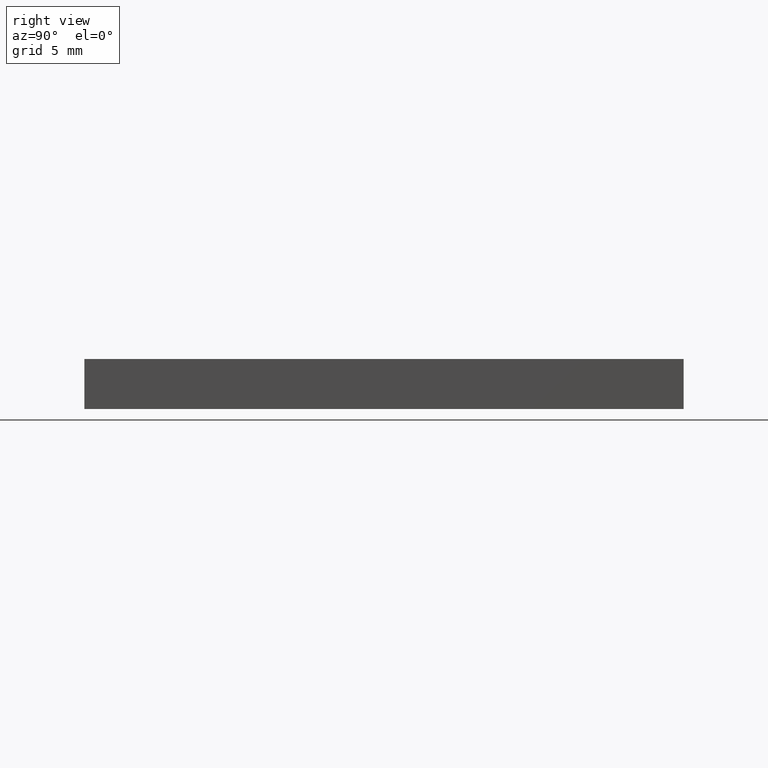
[diagram: clean part render]
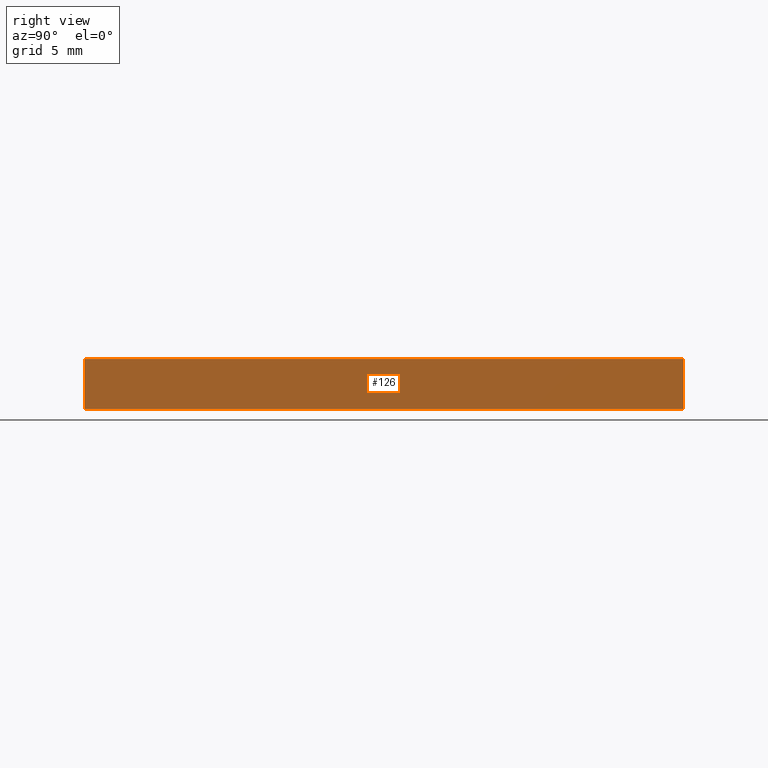
[diagram: same view with one face highlighted and labeled with its STEP entity id]
A machine part, right view. The second image highlights one B-rep face of the part: STEP entity #126.
In plain terms, the highlighted planar face has unit normal (-1, -0, 0).
Its self-contained STEP definition (entity closure, byte-faithful):
#18 = ORIENTED_EDGE ( 'NONE', *, *, #250, .T. ) ;
#21 = DIRECTION ( 'NONE',  ( -2.891205793294678800E-016, 1.000000000000000000, -0.0000000000000000000 ) ) ;
#27 = VECTOR ( 'NONE', #261, 1000.000000000000000 ) ;
#46 = CARTESIAN_POINT ( 'NONE',  ( 18.64837398373983700, 7.520325203252024700, 3.000000000000000000 ) ) ;
#47 = VECTOR ( 'NONE', #107, 1000.000000000000000 ) ;
#58 = CARTESIAN_POINT ( 'NONE',  ( 18.64837398373983700, 7.520325203252024700, 3.000000000000000000 ) ) ;
#61 = PLANE ( 'NONE',  #231 ) ;
#71 = VERTEX_POINT ( 'NONE', #58 ) ;
#75 = EDGE_LOOP ( 'NONE', ( #18, #150, #212, #134 ) ) ;
#85 = EDGE_CURVE ( 'NONE', #71, #154, #104, .T. ) ;
#87 = FACE_OUTER_BOUND ( 'NONE', #75, .T. ) ;
#95 = LINE ( 'NONE', #264, #281 ) ;
#104 = LINE ( 'NONE', #258, #47 ) ;
#107 = DIRECTION ( 'NONE',  ( -0.0000000000000000000, -0.0000000000000000000, -1.000000000000000000 ) ) ;
#126 = ADVANCED_FACE ( 'NONE', ( #87 ), #61, .F. ) ;
#134 = ORIENTED_EDGE ( 'NONE', *, *, #300, .T. ) ;
#140 = LINE ( 'NONE', #46, #27 ) ;
#141 = VERTEX_POINT ( 'NONE', #312 ) ;
#148 = DIRECTION ( 'NONE',  ( 2.891205793294678800E-016, -1.000000000000000000, 0.0000000000000000000 ) ) ;
#150 = ORIENTED_EDGE ( 'NONE', *, *, #85, .F. ) ;
#154 = VERTEX_POINT ( 'NONE', #314 ) ;
#164 = CARTESIAN_POINT ( 'NONE',  ( 18.64837398373984800, -28.47967479674797200, 3.000000000000000000 ) ) ;
#170 = CARTESIAN_POINT ( 'NONE',  ( 18.64837398373983700, 7.520325203252024700, 3.000000000000000000 ) ) ;
#184 = EDGE_CURVE ( 'NONE', #141, #71, #140, .T. ) ;
#212 = ORIENTED_EDGE ( 'NONE', *, *, #184, .F. ) ;
#216 = LINE ( 'NONE', #164, #253 ) ;
#224 = VERTEX_POINT ( 'NONE', #287 ) ;
#231 = AXIS2_PLACEMENT_3D ( 'NONE', #170, #294, #148 ) ;
#250 = EDGE_CURVE ( 'NONE', #224, #154, #95, .T. ) ;
#253 = VECTOR ( 'NONE', #259, 1000.000000000000000 ) ;
#258 = CARTESIAN_POINT ( 'NONE',  ( 18.64837398373983700, 7.520325203252024700, 3.000000000000000000 ) ) ;
#259 = DIRECTION ( 'NONE',  ( -0.0000000000000000000, -0.0000000000000000000, -1.000000000000000000 ) ) ;
#261 = DIRECTION ( 'NONE',  ( -2.891205793294678800E-016, 1.000000000000000000, -0.0000000000000000000 ) ) ;
#264 = CARTESIAN_POINT ( 'NONE',  ( 18.64837398373983700, 7.520325203252024700, 0.0000000000000000000 ) ) ;
#281 = VECTOR ( 'NONE', #21, 1000.000000000000000 ) ;
#287 = CARTESIAN_POINT ( 'NONE',  ( 18.64837398373984800, -28.47967479674797200, 0.0000000000000000000 ) ) ;
#294 = DIRECTION ( 'NONE',  ( -1.000000000000000000, -2.891205793294678800E-016, 0.0000000000000000000 ) ) ;
#300 = EDGE_CURVE ( 'NONE', #141, #224, #216, .T. ) ;
#312 = CARTESIAN_POINT ( 'NONE',  ( 18.64837398373984800, -28.47967479674797200, 3.000000000000000000 ) ) ;
#314 = CARTESIAN_POINT ( 'NONE',  ( 18.64837398373983700, 7.520325203252024700, 0.0000000000000000000 ) ) ;